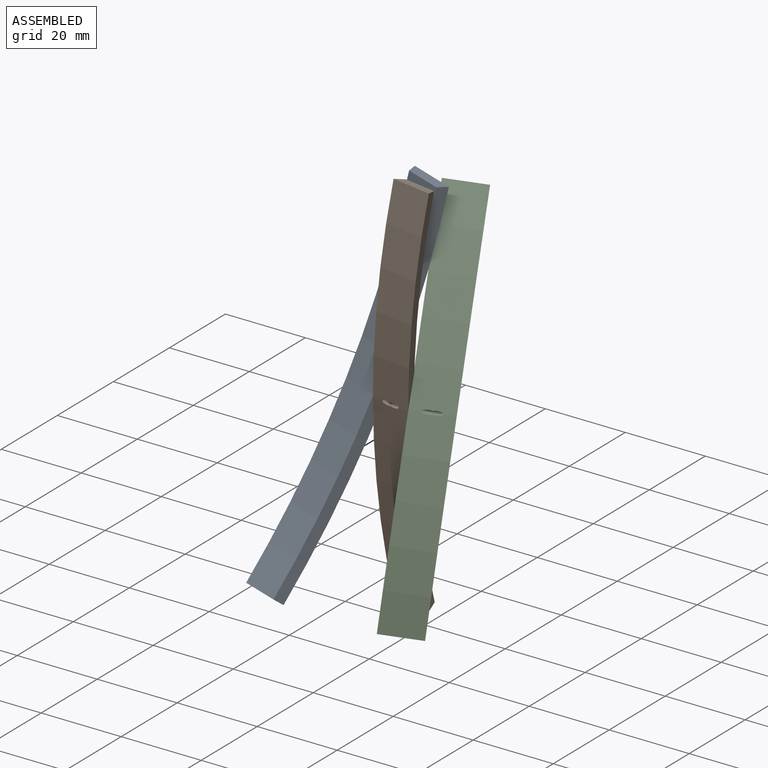
[diagram: assembled view]
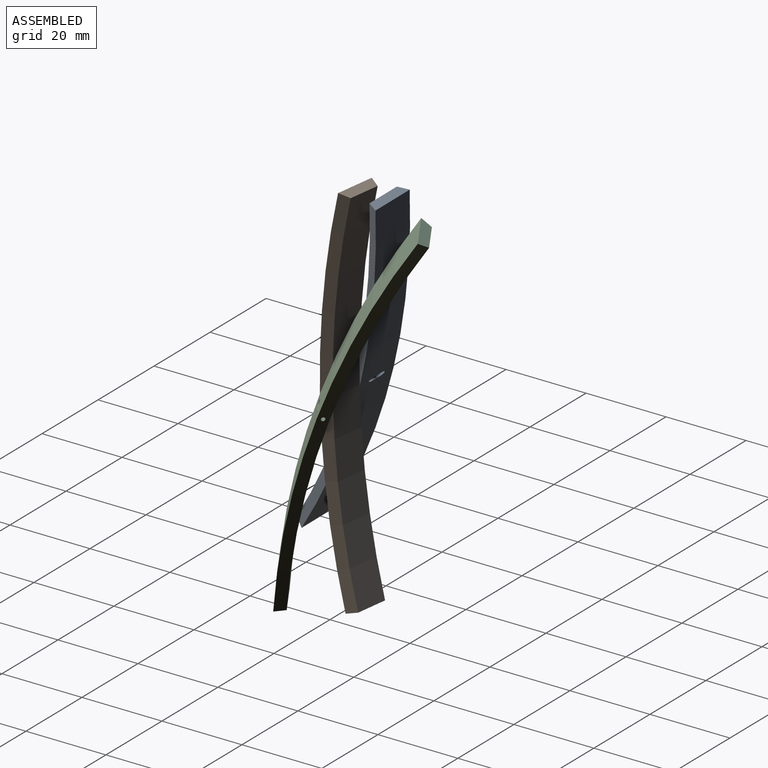
[diagram: assembled view, second angle]
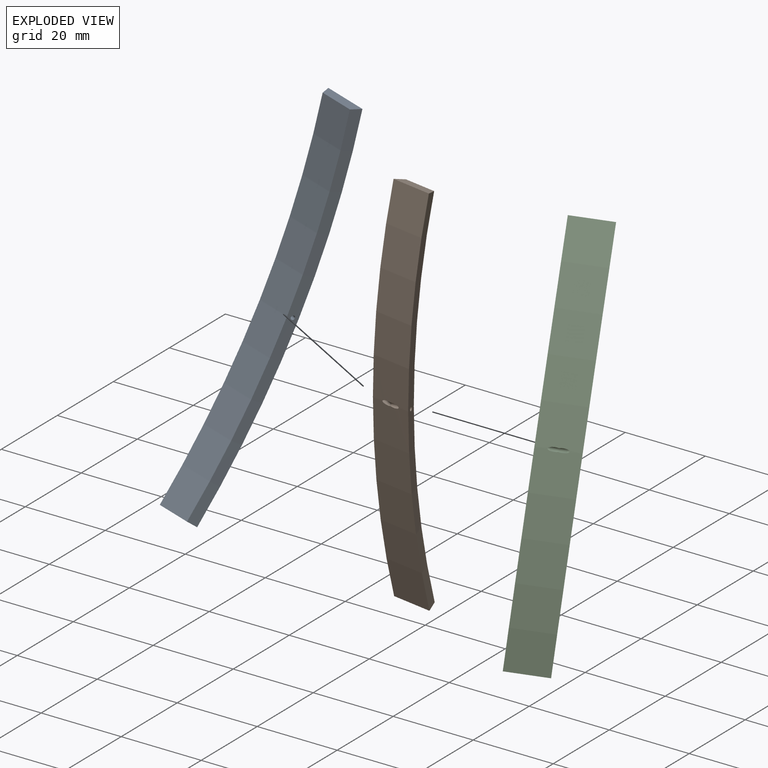
[diagram: exploded view]
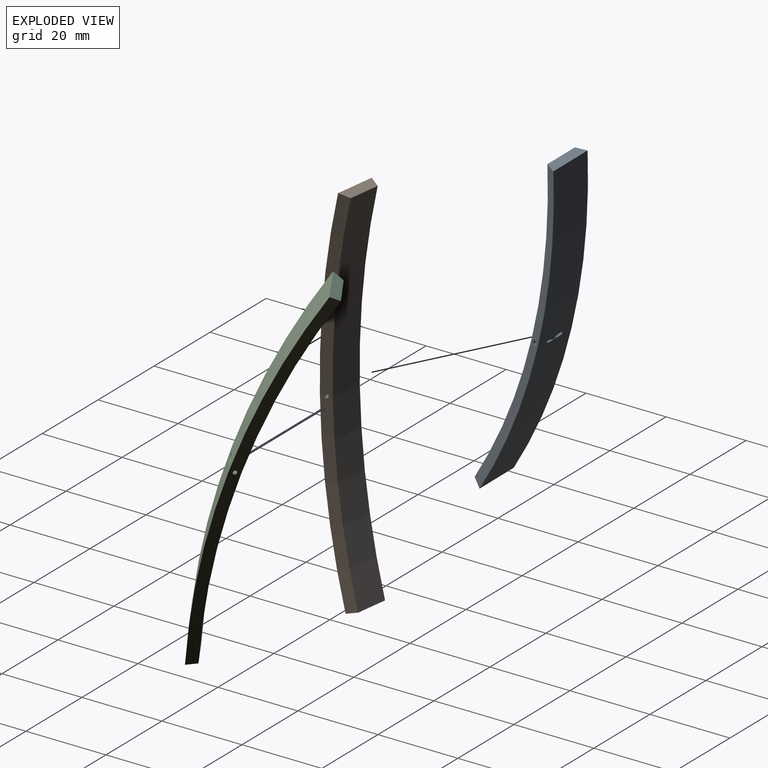
[diagram: exploded view, second angle]
ASSEMBLY  parts=3 mates=2
PART A: 8 faces, bbox 12.6x12.8x95 mm
  f0: plane 9.09x6.75mm, normal (-0.14,0.24,0.96), area 24.3mm2, adj f1,f3,f4,f5
  f1: cylinder r=184.99mm len=95mm, axis (-0.87,-0.5,0), area 957.1mm2, adj f0,f2,f4,f5,f6,f7
  f2: plane 9.1x6.77mm, normal (-0.12,0.21,-0.97), area 24.3mm2, adj f1,f3,f4,f5
  f3: cylinder r=182.29mm len=93.61mm, axis (-0.87,-0.5,0), area 757.5mm2, adj f0,f2,f4,f5
  f4: cone r=184.99mm half-angle=69.7deg, axis (-0.87,-0.5,0), area 273.9mm2, adj f0,f1,f2,f3,f7
  f5: cone r=182.29mm half-angle=69.7deg, axis (0.87,0.5,0), area 273.9mm2, adj f0,f1,f2,f3,f6
  f6: cylinder r=0.5mm len=4.25mm, axis (0.64,0.77,-0.01), area 11.8mm2, adj f1,f5,f7
  f7: cylinder r=0.5mm len=4.79mm, axis (-0.99,-0.17,-0.01), area 11.8mm2, adj f1,f4,f6
PART B: 8 faces, bbox 10.3x10x95 mm
  f0: plane 10x2.6mm, normal (0.27,0,0.96), area 24.3mm2, adj f1,f3,f4,f5
  f1: cylinder r=184.99mm len=95mm, axis (0,1,0), area 957.1mm2, adj f0,f2,f4,f5,f6,f7
  f2: plane 10x2.62mm, normal (0.24,0,-0.97), area 24.3mm2, adj f1,f3,f4,f5
  f3: cylinder r=182.29mm len=93.61mm, axis (0,1,0), area 757.5mm2, adj f0,f2,f4,f5
  f4: cone r=184.99mm half-angle=69.7deg, axis (0,1,0), area 273.9mm2, adj f0,f1,f2,f3,f7
  f5: cone r=182.29mm half-angle=69.7deg, axis (0,-1,0), area 273.9mm2, adj f0,f1,f2,f3,f6
  f6: cylinder r=0.5mm len=4.74mm, axis (0.35,-0.94,-0.01), area 11.8mm2, adj f1,f5,f7
  f7: cylinder r=0.5mm len=4.74mm, axis (0.35,0.94,-0.01), area 11.8mm2, adj f1,f4,f6
PART C: same geometry as A
PLACE A rot(axis=(0.97,0.18,-0.13),163.7deg) t=(30,40.83,-80.32)mm
PLACE B rot(axis=(0.02,-0.01,1),81.3deg) t=(18.96,70.22,24.25)mm fixed
PLACE C rot(axis=(-0.98,-0.15,0.1),19.2deg) t=(59.45,53.31,23.15)mm
MATE revolute B.f6 <-> C.f7  axis (0.98,0.2,-0.01) through (18.04,37.74,-24.15)mm
MATE revolute B.f7 <-> A.f6  axis (-0.87,0.49,0.01) through (9.14,39.1,-24.06)mm
